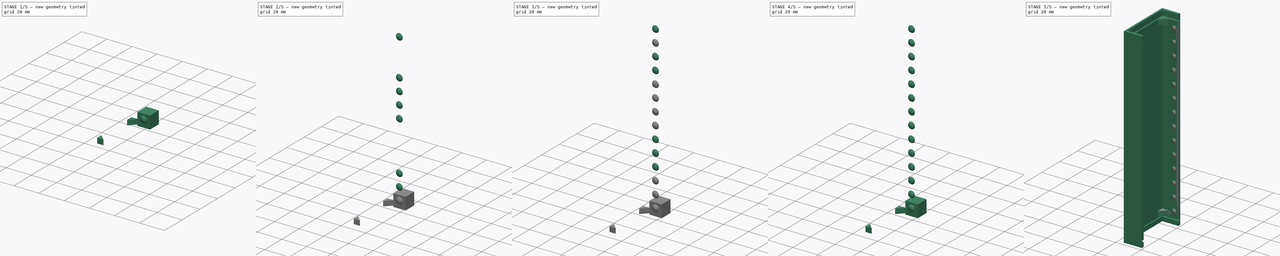
[diagram: build sequence overview — one tinted view per stage of 5, left to right]
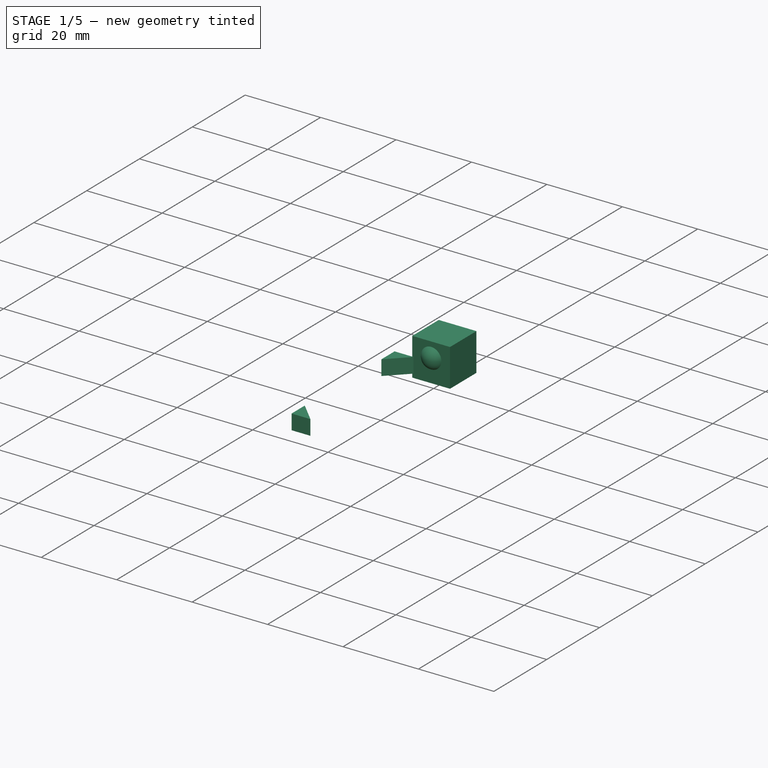
[diagram: stage 1 of 5 — iso view after this stage's code; geometry added in this stage tinted green]
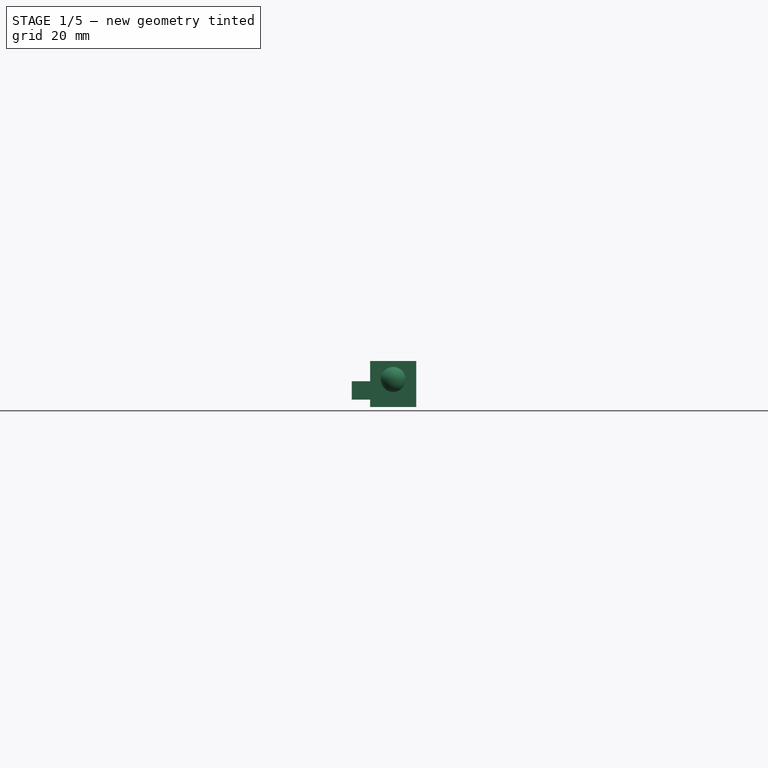
[diagram: stage 1 of 5 — front view after this stage's code; geometry added in this stage tinted green]
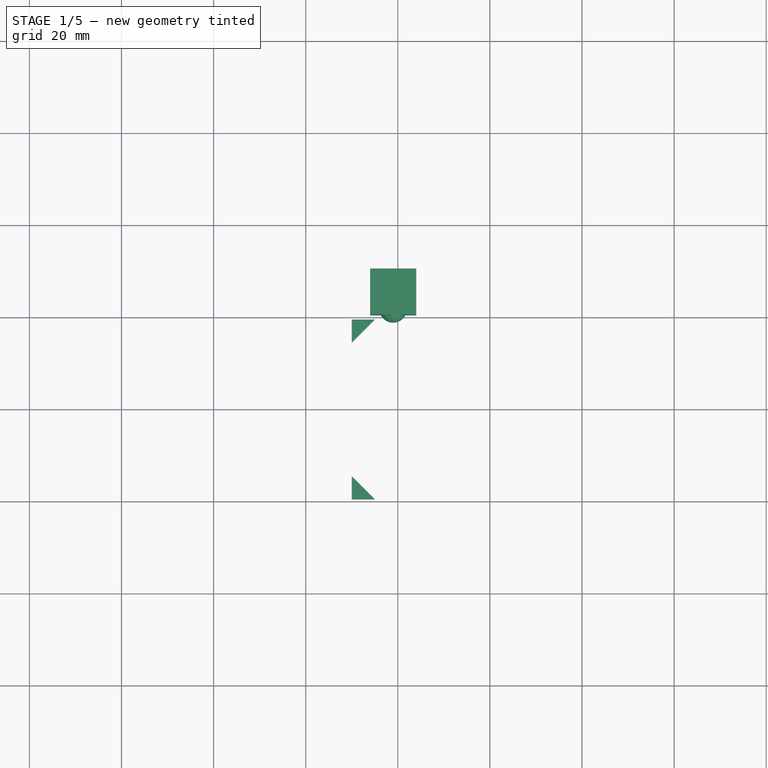
[diagram: stage 1 of 5 — top view after this stage's code; geometry added in this stage tinted green]
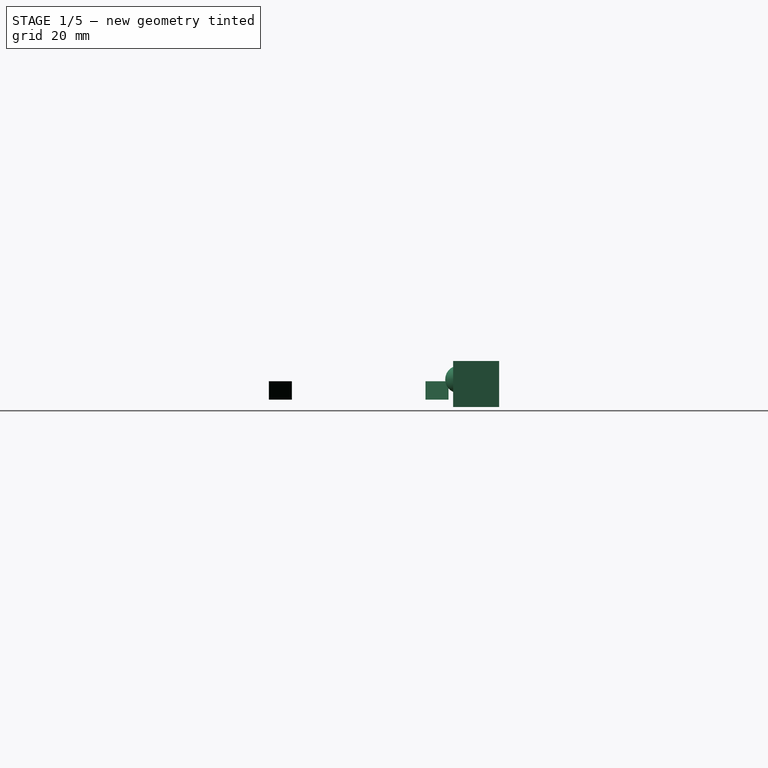
[diagram: stage 1 of 5 — right view after this stage's code; geometry added in this stage tinted green]
FCSTD DOCUMENT  (FreeCAD 0.17R13522 (Git))
Label: BaseClippingSide
License: All rights reserved
LicenseURL: http://en.wikipedia.org/wiki/All_rights_reserved
objects: Part::Sphere×28, Part::Box×28, Part::Cut×28, Part::MultiFuse×9, Sketcher::SketchObject×8, Part::Extrusion×8
note: 109 computed .brp shape members not serialized (recipe doc carries the construction recipe); baked Part::Feature solids carry a one-line shape summary decoded from their .brp

FEATURE [Part::Sphere] Sphere045
  Angle1 = -90
  Angle2 = 90
  Angle3 = 360
  AttacherType = Attacher::AttachEngine3D
  Placement = pos=(-1,21.8,6) rot=(0,0,1;0rad)
  Radius = 3
FEATURE [Part::Box] Box055  label="Cube053"
  AttacherType = Attacher::AttachEngine3D
  Height = 10
  Length = 10
  Placement = pos=(-6,20.5,0) rot=(0,0,1;0rad)
  Width = 10
FEATURE [Part::Box] Box056  label="Cube054"
  AttacherType = Attacher::AttachEngine3D
  Height = 10
  Length = 10
  Placement = pos=(-6,20.5,0) rot=(0,0,1;0rad)
  Width = 10
FEATURE [Part::Sphere] Sphere053
  Angle1 = -90
  Angle2 = 90
  Angle3 = 360
  AttacherType = Attacher::AttachEngine3D
  Placement = pos=(-1,21.8,6) rot=(0,0,1;0rad)
  Radius = 3
FEATURE [Part::Box] Box059  label="Cube057"
  AttacherType = Attacher::AttachEngine3D
  Height = 10
  Length = 10
  Placement = pos=(-6,20.5,0) rot=(0,0,1;0rad)
  Width = 10
FEATURE [Part::Sphere] Sphere055
  Angle1 = -90
  Angle2 = 90
  Angle3 = 360
  AttacherType = Attacher::AttachEngine3D
  Placement = pos=(-1,21.8,6) rot=(0,0,1;0rad)
  Radius = 3
FEATURE [Part::Box] Box060  label="Cube058"
  AttacherType = Attacher::AttachEngine3D
  Height = 10
  Length = 10
  Placement = pos=(-6,20.5,0) rot=(0,0,1;0rad)
  Width = 10
FEATURE [Part::Box] Box061  label="Cube059"
  AttacherType = Attacher::AttachEngine3D
  Height = 10
  Length = 10
  Placement = pos=(-6,20.5,0) rot=(0,0,1;0rad)
  Width = 10
FEATURE [Part::Box] Box062  label="Cube060"
  AttacherType = Attacher::AttachEngine3D
  Height = 10
  Length = 10
  Placement = pos=(-6,20.5,0) rot=(0,0,1;0rad)
  Width = 10
FEATURE [Part::Box] Box063  label="Cube061"
  AttacherType = Attacher::AttachEngine3D
  Height = 10
  Length = 10
  Placement = pos=(-6,20.5,0) rot=(0,0,1;0rad)
  Width = 10
FEATURE [Part::Sphere] Sphere056
  Angle1 = -90
  Angle2 = 90
  Angle3 = 360
  AttacherType = Attacher::AttachEngine3D
  Placement = pos=(-1,21.8,6) rot=(0,0,1;0rad)
  Radius = 3
FEATURE [Part::Box] Box058  label="Cube056"
  AttacherType = Attacher::AttachEngine3D
  Height = 10
  Length = 10
  Placement = pos=(-6,20.5,0) rot=(0,0,1;0rad)
  Width = 10
FEATURE [Part::Sphere] Sphere052
  Angle1 = -90
  Angle2 = 90
  Angle3 = 360
  AttacherType = Attacher::AttachEngine3D
  Placement = pos=(-1,21.8,6) rot=(0,0,1;0rad)
  Radius = 3
FEATURE [Part::Box] Box057  label="Cube055"
  AttacherType = Attacher::AttachEngine3D
  Height = 10
  Length = 10
  Placement = pos=(-6,20.5,0) rot=(0,0,1;0rad)
  Width = 10
FEATURE [Part::Sphere] Sphere051
  Angle1 = -90
  Angle2 = 90
  Angle3 = 360
  AttacherType = Attacher::AttachEngine3D
  Placement = pos=(-1,21.8,6) rot=(0,0,1;0rad)
  Radius = 3
FEATURE [Part::Extrusion] Extrude014
  Base = -> Sketch010
  Dir = (0,0,1)
  DirMode = 2
  FaceMakerClass = Part::FaceMakerBullseye
  LengthFwd = 4
  LengthRev = 0
  Placement = pos=(-10,19.5,1.6) rot=(0,0,-1;1.5708rad)
  Solid = true
  Symmetric = false
FEATURE [Part::Cut] Cut057  label="NobHole055"
  Base = -> Sphere045
  Tool = -> Box062
FEATURE [Sketcher::SketchObject] Sketch012
  MapMode = 2
  sketch-geometry (3):
    g0: LineSegment StartX=0 StartY=0 StartZ=0 EndX=5 EndY=0 EndZ=0
    g1: LineSegment StartX=0 StartY=5 StartZ=0 EndX=5 EndY=0 EndZ=0
    g2: LineSegment StartX=0 StartY=5 StartZ=0 EndX=0 EndY=0 EndZ=0
  constraints (8):
    c: Coincident(g0,g2)
    c: Angle(g0,g2) = 1.5708
    c: Coincident(g1,g2)
    c: Coincident(g1,g0)
    c: DistanceX(g0,g0) = 5
    c: DistanceY(g2,g2) = 5
    c: Coincident(g0,g-1)
    c: Parallel(g0,g-1)
FEATURE [Part::Extrusion] Extrude019
  Base = -> Sketch012
  Dir = (0,0,1)
  DirMode = 2
  FaceMakerClass = Part::FaceMakerBullseye
  LengthFwd = 4
  LengthRev = 0
  Placement = pos=(-10,-19.5,1.6) rot=(0,0,1;0rad)
  Solid = true
  Symmetric = false
FEATURE [Sketcher::SketchObject] Sketch013
  MapMode = 2
  sketch-geometry (3):
    g0: LineSegment StartX=0 StartY=0 StartZ=0 EndX=5 EndY=0 EndZ=0
    g1: LineSegment StartX=0 StartY=5 StartZ=0 EndX=5 EndY=0 EndZ=0
    g2: LineSegment StartX=0 StartY=5 StartZ=0 EndX=0 EndY=0 EndZ=0
  constraints (8):
    c: Coincident(g0,g2)
    c: Angle(g0,g2) = 1.5708
    c: Coincident(g1,g2)
    c: Coincident(g1,g0)
    c: DistanceX(g0,g0) = 5
    c: DistanceY(g2,g2) = 5
    c: Coincident(g0,g-1)
    c: Parallel(g0,g-1)
FEATURE [Part::Extrusion] Extrude024
  Base = -> Sketch013
  Dir = (0,0,1)
  DirMode = 2
  FaceMakerClass = Part::FaceMakerBullseye
  LengthFwd = 4
  LengthRev = 0
  Placement = pos=(-10,19.5,1.6) rot=(0,0,-1;1.5708rad)
  Solid = true
  Symmetric = false
FEATURE [Sketcher::SketchObject] Sketch018
  MapMode = 2
  sketch-geometry (3):
    g0: LineSegment StartX=0 StartY=0 StartZ=0 EndX=5 EndY=0 EndZ=0
    g1: LineSegment StartX=0 StartY=5 StartZ=0 EndX=5 EndY=0 EndZ=0
    g2: LineSegment StartX=0 StartY=5 StartZ=0 EndX=0 EndY=0 EndZ=0
  constraints (8):
    c: Coincident(g0,g2)
    c: Angle(g0,g2) = 1.5708
    c: Coincident(g1,g2)
    c: Coincident(g1,g0)
    c: DistanceX(g0,g0) = 5
    c: DistanceY(g2,g2) = 5
    c: Coincident(g0,g-1)
    c: Parallel(g0,g-1)
FEATURE [Part::Extrusion] Extrude025
  Base = -> Sketch018
  Dir = (0,0,1)
  DirMode = 2
  FaceMakerClass = Part::FaceMakerBullseye
  LengthFwd = 4
  LengthRev = 0
  Placement = pos=(-10,-19.5,1.6) rot=(0,0,1;0rad)
  Solid = true
  Symmetric = false
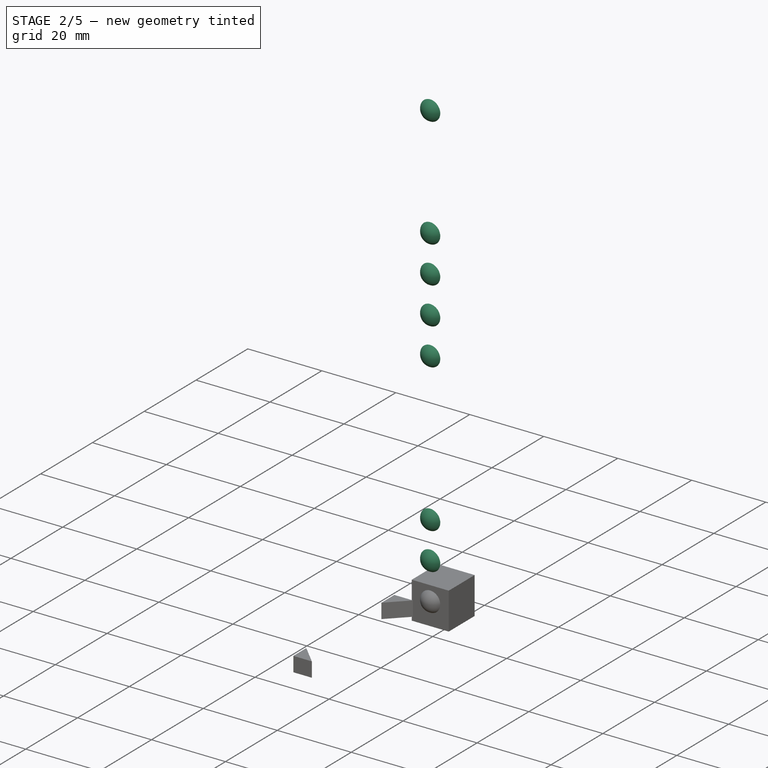
[diagram: stage 2 of 5 — iso view after this stage's code; geometry added in this stage tinted green]
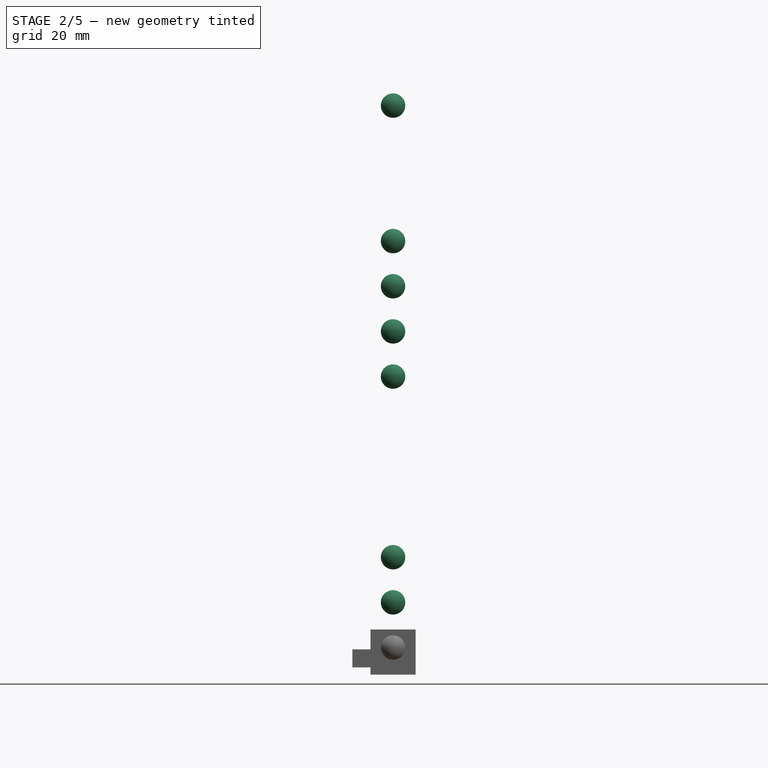
[diagram: stage 2 of 5 — front view after this stage's code; geometry added in this stage tinted green]
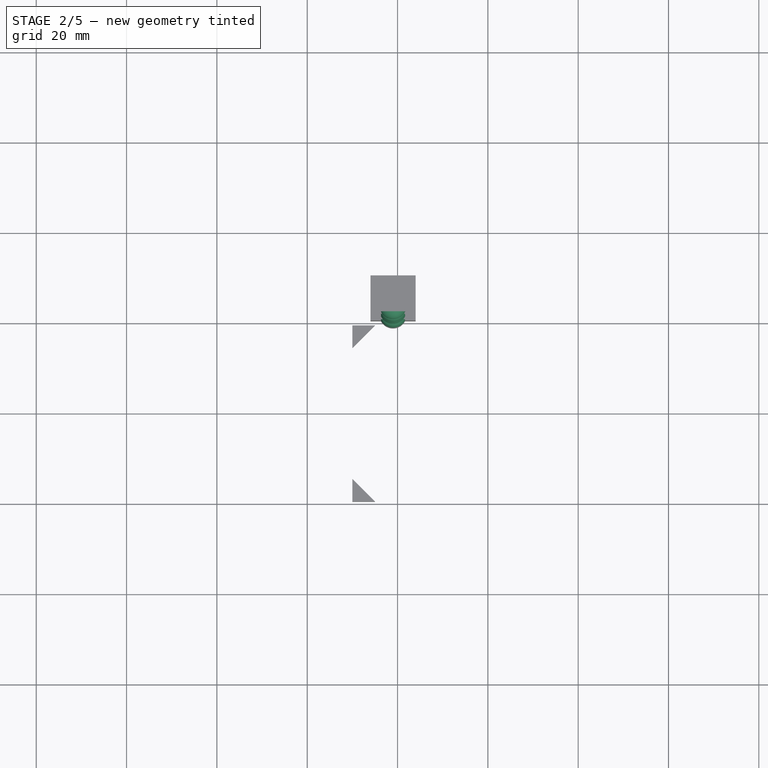
[diagram: stage 2 of 5 — top view after this stage's code; geometry added in this stage tinted green]
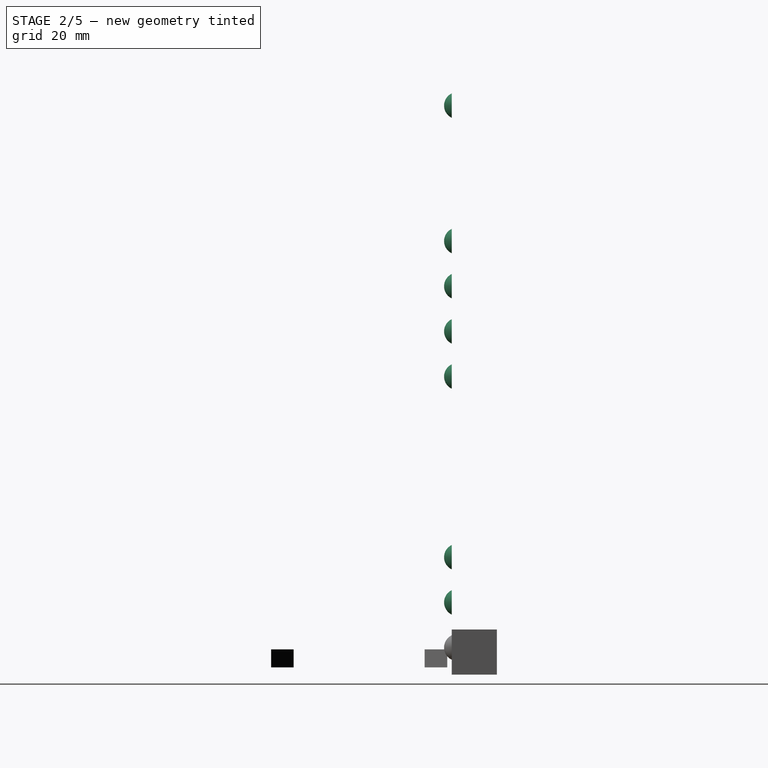
[diagram: stage 2 of 5 — right view after this stage's code; geometry added in this stage tinted green]
FEATURE [Part::Sphere] Sphere044
  Angle1 = -90
  Angle2 = 90
  Angle3 = 360
  AttacherType = Attacher::AttachEngine3D
  Placement = pos=(-1,21.8,6) rot=(0,0,1;0rad)
  Radius = 3
FEATURE [Part::Box] Box050  label="Cube048"
  AttacherType = Attacher::AttachEngine3D
  Height = 10
  Length = 10
  Placement = pos=(-6,20.5,0) rot=(0,0,1;0rad)
  Width = 10
FEATURE [Part::Box] Box051  label="Cube049"
  AttacherType = Attacher::AttachEngine3D
  Height = 10
  Length = 10
  Placement = pos=(-6,20.5,0) rot=(0,0,1;0rad)
  Width = 10
FEATURE [Part::Sphere] Sphere046
  Angle1 = -90
  Angle2 = 90
  Angle3 = 360
  AttacherType = Attacher::AttachEngine3D
  Placement = pos=(-1,21.8,6) rot=(0,0,1;0rad)
  Radius = 3
FEATURE [Part::Sphere] Sphere047
  Angle1 = -90
  Angle2 = 90
  Angle3 = 360
  AttacherType = Attacher::AttachEngine3D
  Placement = pos=(-1,21.8,6) rot=(0,0,1;0rad)
  Radius = 3
FEATURE [Part::Box] Box052  label="Cube050"
  AttacherType = Attacher::AttachEngine3D
  Height = 10
  Length = 10
  Placement = pos=(-6,20.5,0) rot=(0,0,1;0rad)
  Width = 10
FEATURE [Part::Sphere] Sphere048
  Angle1 = -90
  Angle2 = 90
  Angle3 = 360
  AttacherType = Attacher::AttachEngine3D
  Placement = pos=(-1,21.8,6) rot=(0,0,1;0rad)
  Radius = 3
FEATURE [Part::Sphere] Sphere043
  Angle1 = -90
  Angle2 = 90
  Angle3 = 360
  AttacherType = Attacher::AttachEngine3D
  Placement = pos=(-1,21.8,6) rot=(0,0,1;0rad)
  Radius = 3
FEATURE [Part::Sphere] Sphere049
  Angle1 = -90
  Angle2 = 90
  Angle3 = 360
  AttacherType = Attacher::AttachEngine3D
  Placement = pos=(-1,21.8,6) rot=(0,0,1;0rad)
  Radius = 3
FEATURE [Part::Box] Box054  label="Cube052"
  AttacherType = Attacher::AttachEngine3D
  Height = 10
  Length = 10
  Placement = pos=(-6,20.5,0) rot=(0,0,1;0rad)
  Width = 10
FEATURE [Part::Cut] Cut054  label="NobHole052"
  Base = -> Sphere044
  Placement = pos=(0,0,10) rot=(0,0,1;0rad)
  Tool = -> Box054
FEATURE [Part::Box] Box053  label="Cube051"
  AttacherType = Attacher::AttachEngine3D
  Height = 10
  Length = 10
  Placement = pos=(-6,20.5,0) rot=(0,0,1;0rad)
  Width = 10
FEATURE [Part::Sphere] Sphere054
  Angle1 = -90
  Angle2 = 90
  Angle3 = 360
  AttacherType = Attacher::AttachEngine3D
  Placement = pos=(-1,21.8,6) rot=(0,0,1;0rad)
  Radius = 3
FEATURE [Part::Sphere] Sphere050
  Angle1 = -90
  Angle2 = 90
  Angle3 = 360
  AttacherType = Attacher::AttachEngine3D
  Placement = pos=(-1,21.8,6) rot=(0,0,1;0rad)
  Radius = 3
FEATURE [Part::Cut] Cut046  label="NobHole044"
  Base = -> Sphere055
  Placement = pos=(0,0,80) rot=(0,0,1;0rad)
  Tool = -> Box059
FEATURE [Part::Cut] Cut044  label="NobHole042"
  Base = -> Sphere043
  Placement = pos=(0,0,20) rot=(0,0,1;0rad)
  Tool = -> Box061
FEATURE [Part::Cut] Cut050  label="NobHole048"
  Base = -> Sphere050
  Placement = pos=(0,0,90) rot=(0,0,1;0rad)
  Tool = -> Box063
FEATURE [Part::Cut] Cut051  label="NobHole049"
  Base = -> Sphere056
  Placement = pos=(0,0,120) rot=(0,0,1;0rad)
  Tool = -> Box056
FEATURE [Part::Cut] Cut045  label="NobHole043"
  Base = -> Sphere047
  Placement = pos=(0,0,60) rot=(0,0,1;0rad)
  Tool = -> Box058
FEATURE [Part::Cut] Cut052  label="NobHole050"
  Base = -> Sphere051
  Placement = pos=(0,0,70) rot=(0,0,1;0rad)
  Tool = -> Box057
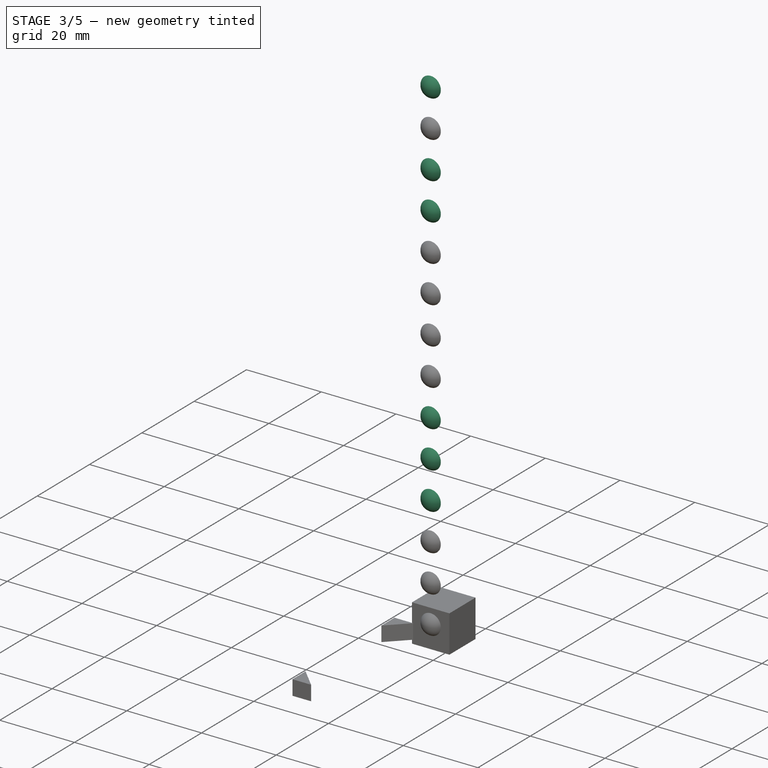
[diagram: stage 3 of 5 — iso view after this stage's code; geometry added in this stage tinted green]
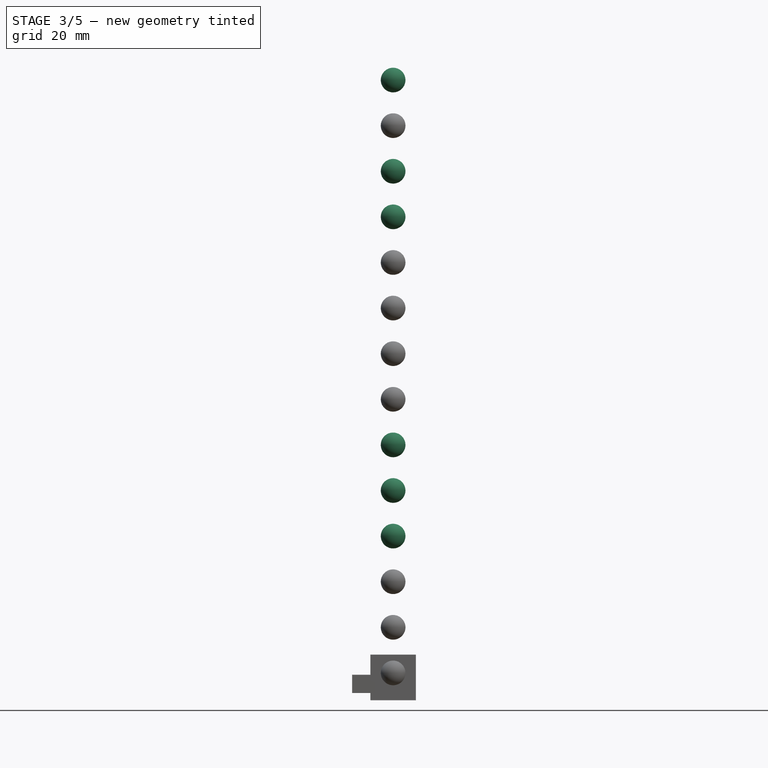
[diagram: stage 3 of 5 — front view after this stage's code; geometry added in this stage tinted green]
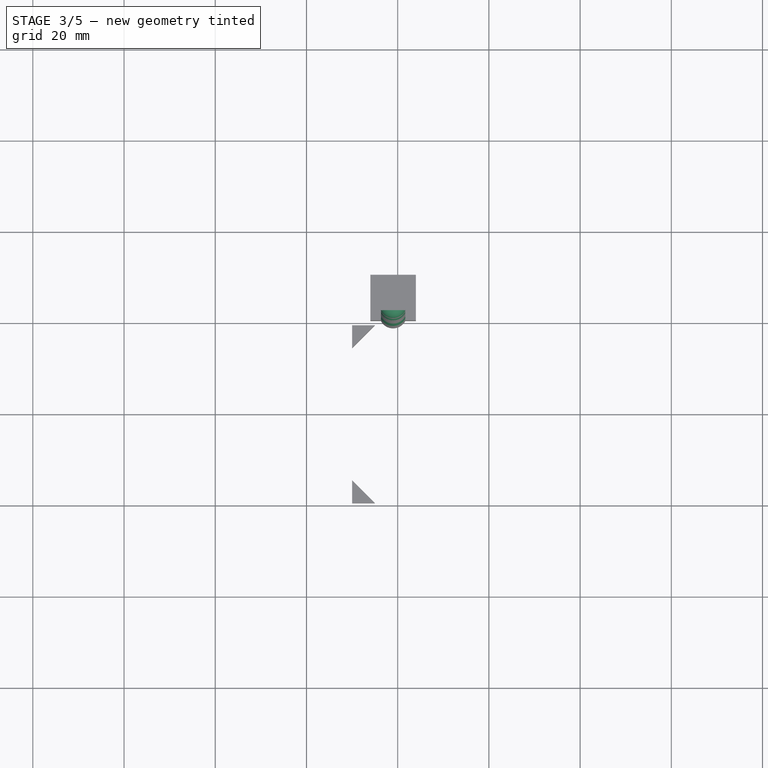
[diagram: stage 3 of 5 — top view after this stage's code; geometry added in this stage tinted green]
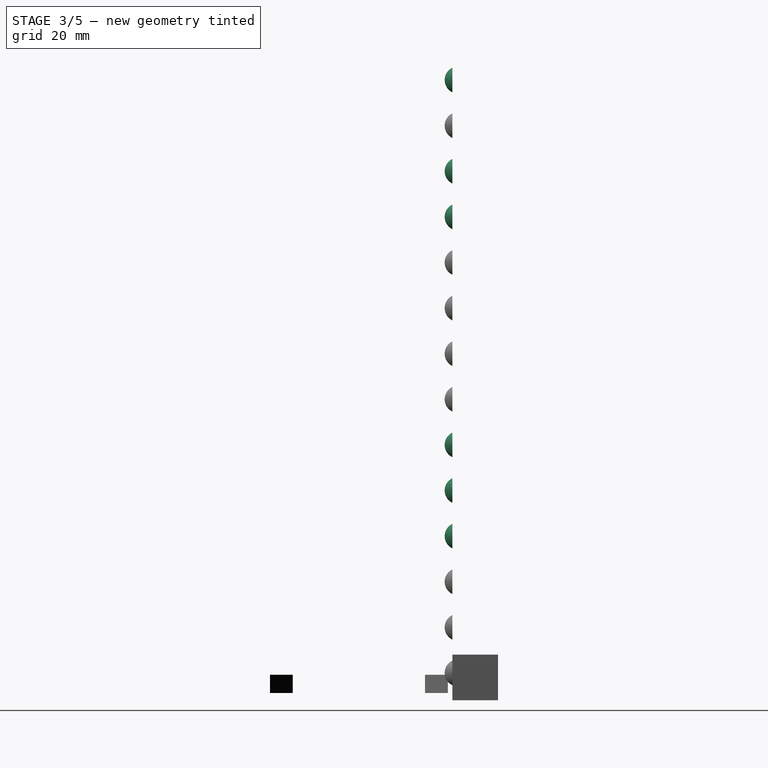
[diagram: stage 3 of 5 — right view after this stage's code; geometry added in this stage tinted green]
FEATURE [Part::Sphere] Sphere015
  Angle1 = -90
  Angle2 = 90
  Angle3 = 360
  AttacherType = Attacher::AttachEngine3D
  Placement = pos=(-1,21.8,6) rot=(0,0,1;0rad)
  Radius = 3
FEATURE [Part::Box] Box022  label="Cube020"
  AttacherType = Attacher::AttachEngine3D
  Height = 10
  Length = 10
  Placement = pos=(-6,20.5,0) rot=(0,0,1;0rad)
  Width = 10
FEATURE [Part::Sphere] Sphere019
  Angle1 = -90
  Angle2 = 90
  Angle3 = 360
  AttacherType = Attacher::AttachEngine3D
  Placement = pos=(-1,21.8,6) rot=(0,0,1;0rad)
  Radius = 3
FEATURE [Part::Sphere] Sphere022
  Angle1 = -90
  Angle2 = 90
  Angle3 = 360
  AttacherType = Attacher::AttachEngine3D
  Placement = pos=(-1,21.8,6) rot=(0,0,1;0rad)
  Radius = 3
FEATURE [Part::Box] Box026  label="Cube024"
  AttacherType = Attacher::AttachEngine3D
  Height = 10
  Length = 10
  Placement = pos=(-6,20.5,0) rot=(0,0,1;0rad)
  Width = 10
FEATURE [Part::Cut] Cut025  label="NobHole023"
  Base = -> Sphere019
  Placement = pos=(0,0,120) rot=(0,0,1;0rad)
  Tool = -> Box026
FEATURE [Part::Cut] Cut022  label="NobHole020"
  Base = -> Sphere015
  Placement = pos=(0,0,90) rot=(0,0,1;0rad)
  Tool = -> Box022
FEATURE [Part::Box] Box034  label="Cube032"
  AttacherType = Attacher::AttachEngine3D
  Height = 10
  Length = 10
  Placement = pos=(-6,20.5,0) rot=(0,0,1;0rad)
  Width = 10
FEATURE [Part::Sphere] Sphere028
  Angle1 = -90
  Angle2 = 90
  Angle3 = 360
  AttacherType = Attacher::AttachEngine3D
  Placement = pos=(-1,21.8,6) rot=(0,0,1;0rad)
  Radius = 3
FEATURE [Part::Box] Box033  label="Cube031"
  AttacherType = Attacher::AttachEngine3D
  Height = 10
  Length = 10
  Placement = pos=(-6,20.5,0) rot=(0,0,1;0rad)
  Width = 10
FEATURE [Part::Sphere] Sphere025
  Angle1 = -90
  Angle2 = 90
  Angle3 = 360
  AttacherType = Attacher::AttachEngine3D
  Placement = pos=(-1,21.8,6) rot=(0,0,1;0rad)
  Radius = 3
FEATURE [Part::Sphere] Sphere024
  Angle1 = -90
  Angle2 = 90
  Angle3 = 360
  AttacherType = Attacher::AttachEngine3D
  Placement = pos=(-1,21.8,6) rot=(0,0,1;0rad)
  Radius = 3
FEATURE [Part::Sphere] Sphere027
  Angle1 = -90
  Angle2 = 90
  Angle3 = 360
  AttacherType = Attacher::AttachEngine3D
  Placement = pos=(-1,21.8,6) rot=(0,0,1;0rad)
  Radius = 3
FEATURE [Part::Sphere] Sphere026
  Angle1 = -90
  Angle2 = 90
  Angle3 = 360
  AttacherType = Attacher::AttachEngine3D
  Placement = pos=(-1,21.8,6) rot=(0,0,1;0rad)
  Radius = 3
FEATURE [Part::Box] Box035  label="Cube033"
  AttacherType = Attacher::AttachEngine3D
  Height = 10
  Length = 10
  Placement = pos=(-6,20.5,0) rot=(0,0,1;0rad)
  Width = 10
FEATURE [Part::Cut] Cut053  label="NobHole051"
  Base = -> Sphere048
  Placement = pos=(0,0,40) rot=(0,0,1;0rad)
  Tool = -> Box050
FEATURE [Part::Cut] Cut055  label="NobHole053"
  Base = -> Sphere049
  Placement = pos=(0,0,100) rot=(0,0,1;0rad)
  Tool = -> Box053
FEATURE [Part::Cut] Cut048  label="NobHole046"
  Base = -> Sphere054
  Placement = pos=(0,0,50) rot=(0,0,1;0rad)
  Tool = -> Box051
FEATURE [Part::Cut] Cut047  label="NobHole045"
  Base = -> Sphere046
  Placement = pos=(0,0,130) rot=(0,0,1;0rad)
  Tool = -> Box055
FEATURE [Part::Cut] Cut056  label="NobHole054"
  Base = -> Sphere053
  Placement = pos=(0,0,30) rot=(0,0,1;0rad)
  Tool = -> Box052
FEATURE [Part::Cut] Cut049  label="NobHole047"
  Base = -> Sphere052
  Placement = pos=(0,0,110) rot=(0,0,1;0rad)
  Tool = -> Box060
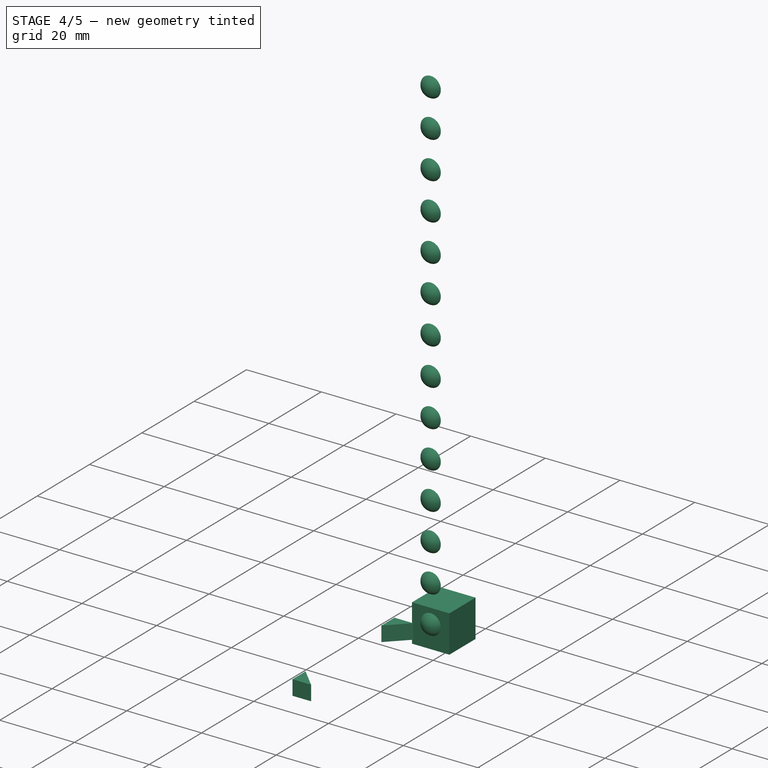
[diagram: stage 4 of 5 — iso view after this stage's code; geometry added in this stage tinted green]
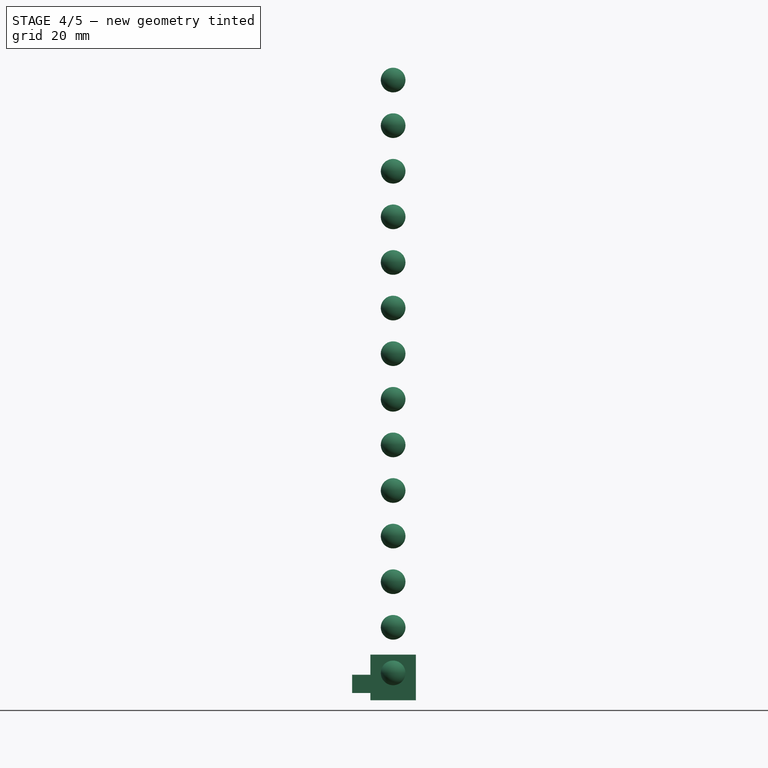
[diagram: stage 4 of 5 — front view after this stage's code; geometry added in this stage tinted green]
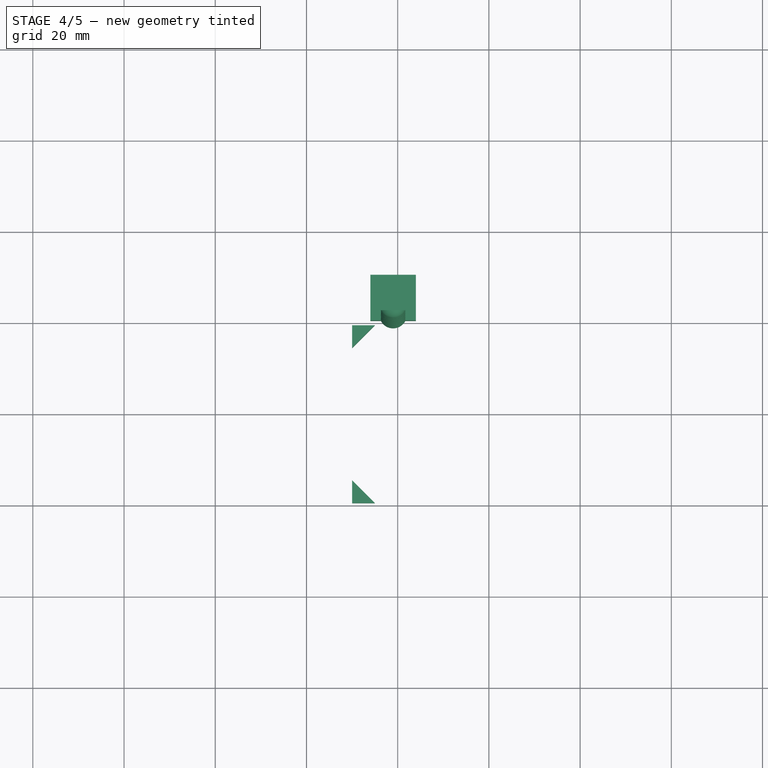
[diagram: stage 4 of 5 — top view after this stage's code; geometry added in this stage tinted green]
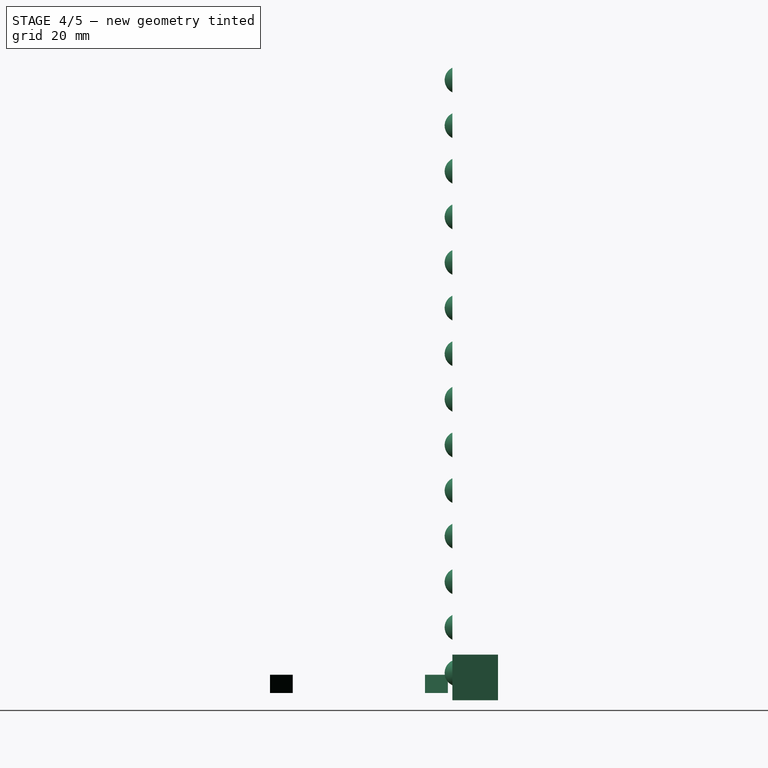
[diagram: stage 4 of 5 — right view after this stage's code; geometry added in this stage tinted green]
FEATURE [Part::Sphere] Sphere021
  Angle1 = -90
  Angle2 = 90
  Angle3 = 360
  AttacherType = Attacher::AttachEngine3D
  Placement = pos=(-1,21.8,6) rot=(0,0,1;0rad)
  Radius = 3
FEATURE [Part::Box] Box028  label="Cube026"
  AttacherType = Attacher::AttachEngine3D
  Height = 10
  Length = 10
  Placement = pos=(-6,20.5,0) rot=(0,0,1;0rad)
  Width = 10
FEATURE [Part::Sphere] Sphere017
  Angle1 = -90
  Angle2 = 90
  Angle3 = 360
  AttacherType = Attacher::AttachEngine3D
  Placement = pos=(-1,21.8,6) rot=(0,0,1;0rad)
  Radius = 3
FEATURE [Part::Box] Box030  label="Cube028"
  AttacherType = Attacher::AttachEngine3D
  Height = 10
  Length = 10
  Placement = pos=(-6,20.5,0) rot=(0,0,1;0rad)
  Width = 10
FEATURE [Part::Box] Box025  label="Cube023"
  AttacherType = Attacher::AttachEngine3D
  Height = 10
  Length = 10
  Placement = pos=(-6,20.5,0) rot=(0,0,1;0rad)
  Width = 10
FEATURE [Part::Box] Box031  label="Cube029"
  AttacherType = Attacher::AttachEngine3D
  Height = 10
  Length = 10
  Placement = pos=(-6,20.5,0) rot=(0,0,1;0rad)
  Width = 10
FEATURE [Part::Sphere] Sphere023
  Angle1 = -90
  Angle2 = 90
  Angle3 = 360
  AttacherType = Attacher::AttachEngine3D
  Placement = pos=(-1,21.8,6) rot=(0,0,1;0rad)
  Radius = 3
FEATURE [Part::Box] Box032  label="Cube030"
  AttacherType = Attacher::AttachEngine3D
  Height = 10
  Length = 10
  Placement = pos=(-6,20.5,0) rot=(0,0,1;0rad)
  Width = 10
FEATURE [Part::Sphere] Sphere016
  Angle1 = -90
  Angle2 = 90
  Angle3 = 360
  AttacherType = Attacher::AttachEngine3D
  Placement = pos=(-1,21.8,6) rot=(0,0,1;0rad)
  Radius = 3
FEATURE [Part::Box] Box029  label="Cube027"
  AttacherType = Attacher::AttachEngine3D
  Height = 10
  Length = 10
  Placement = pos=(-6,20.5,0) rot=(0,0,1;0rad)
  Width = 10
FEATURE [Part::Box] Box023  label="Cube021"
  AttacherType = Attacher::AttachEngine3D
  Height = 10
  Length = 10
  Placement = pos=(-6,20.5,0) rot=(0,0,1;0rad)
  Width = 10
FEATURE [Part::Box] Box024  label="Cube022"
  AttacherType = Attacher::AttachEngine3D
  Height = 10
  Length = 10
  Placement = pos=(-6,20.5,0) rot=(0,0,1;0rad)
  Width = 10
FEATURE [Part::Sphere] Sphere020
  Angle1 = -90
  Angle2 = 90
  Angle3 = 360
  AttacherType = Attacher::AttachEngine3D
  Placement = pos=(-1,21.8,6) rot=(0,0,1;0rad)
  Radius = 3
FEATURE [Part::Cut] Cut023  label="NobHole021"
  Base = -> Sphere017
  Placement = pos=(0,0,100) rot=(0,0,1;0rad)
  Tool = -> Box025
FEATURE [Part::Cut] Cut028  label="NobHole026"
  Base = -> Sphere023
  Placement = pos=(0,0,50) rot=(0,0,1;0rad)
  Tool = -> Box034
FEATURE [Part::Cut] Cut029  label="NobHole027"
  Base = -> Sphere028
  Placement = pos=(0,0,130) rot=(0,0,1;0rad)
  Tool = -> Box031
FEATURE [Part::Cut] Cut021  label="NobHole019"
  Base = -> Sphere021
  Placement = pos=(0,0,40) rot=(0,0,1;0rad)
  Tool = -> Box033
FEATURE [Part::Cut] Cut026  label="NobHole024"
  Base = -> Sphere027
  Placement = pos=(0,0,10) rot=(0,0,1;0rad)
  Tool = -> Box028
FEATURE [Part::Cut] Cut024  label="NobHole022"
  Base = -> Sphere026
  Tool = -> Box030
FEATURE [Part::Cut] Cut027  label="NobHole025"
  Base = -> Sphere022
  Placement = pos=(0,0,30) rot=(0,0,1;0rad)
  Tool = -> Box035
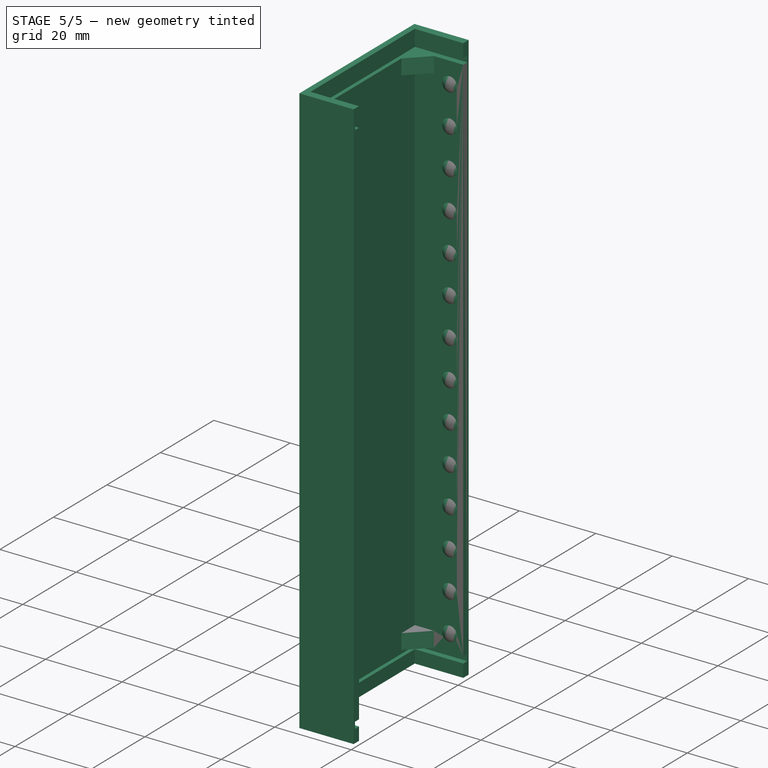
[diagram: stage 5 of 5 — iso view after this stage's code; geometry added in this stage tinted green]
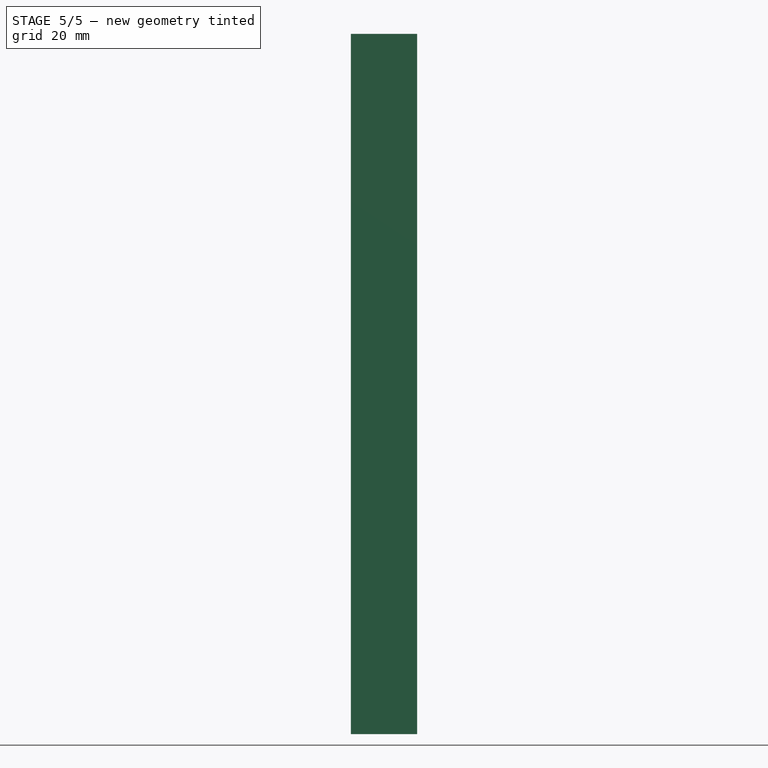
[diagram: stage 5 of 5 — front view after this stage's code; geometry added in this stage tinted green]
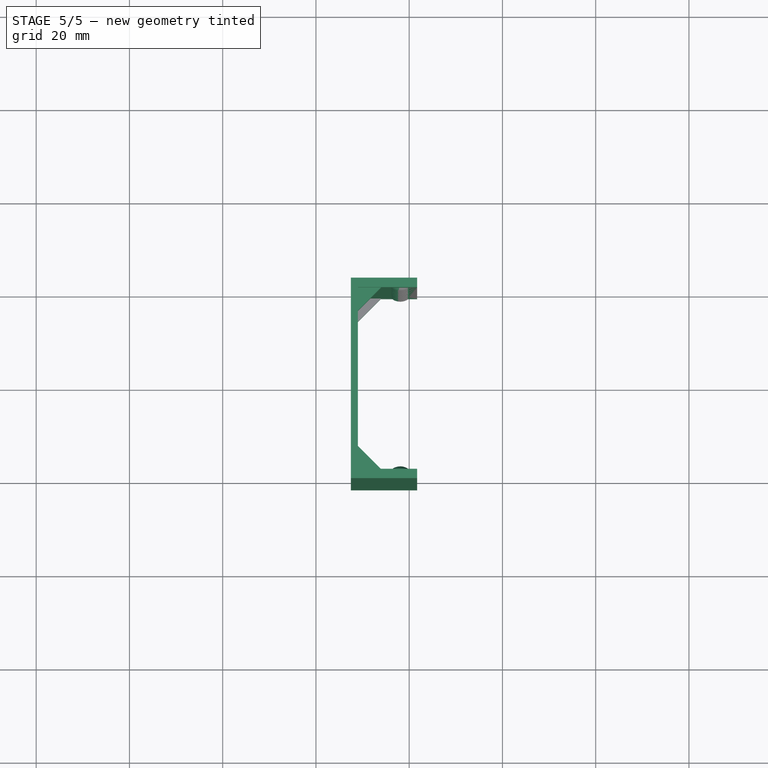
[diagram: stage 5 of 5 — top view after this stage's code; geometry added in this stage tinted green]
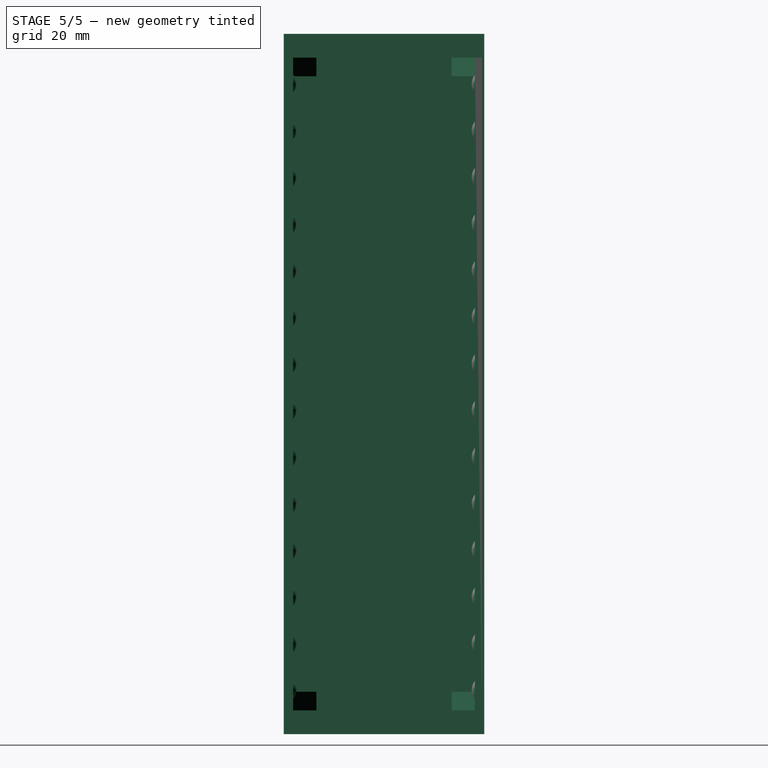
[diagram: stage 5 of 5 — right view after this stage's code; geometry added in this stage tinted green]
FEATURE [Sketcher::SketchObject] Sketch007
  MapMode = 5
  sketch-geometry (8):
    g0: LineSegment StartX=-1 StartY=21 StartZ=0 EndX=12.7 EndY=21 EndZ=0
    g1: LineSegment StartX=0 StartY=19.5 StartZ=0 EndX=12.7 EndY=19.5 EndZ=0
    g2: LineSegment StartX=12.7 StartY=21 StartZ=0 EndX=12.7 EndY=19.5 EndZ=0
    g3: LineSegment StartX=-1 StartY=21 StartZ=0 EndX=-1 EndY=-21 EndZ=0
    g4: LineSegment StartX=0 StartY=19.5 StartZ=0 EndX=0 EndY=-19.5 EndZ=0
    g5: LineSegment StartX=0 StartY=-19.5 StartZ=0 EndX=12.7 EndY=-19.5 EndZ=0
    g6: LineSegment StartX=12.7 StartY=-19.5 StartZ=0 EndX=12.7 EndY=-21 EndZ=0
    g7: LineSegment StartX=12.7 StartY=-21 StartZ=0 EndX=-1 EndY=-21 EndZ=0
  constraints (24):
    c: Coincident(g0,g2)
    c: Coincident(g2,g1)
    c: Distance(g0) = 13.7
    c: Coincident(g0,g3)
    c: Coincident(g1,g4)
    c: Coincident(g4,g5)
    c: Coincident(g5,g6)
    c: Coincident(g6,g7)
    c: Coincident(g3,g7)
    c: Parallel(g3,g4)
    c: Parallel(g4,g2)
    c: Parallel(g2,g6)
    c: Parallel(g0,g1)
    c: Parallel(g1,g5)
    c: Parallel(g5,g7)
    c: Equal(g0,g7)
    c: Equal(g1,g5)
    c: Distance(g4) = 39
    c: Symmetric(g1,g4,g-1)
    c: Angle(g3,g0) = 1.5708
    c: Distance(g3) = 42
    c: Distance(g2) = 1.5
    c: DistanceX(g3,g4) = 1
    c: PointOnObject(g-1,g4)
FEATURE [Sketcher::SketchObject] Sketch008
  MapMode = 5
  sketch-geometry (8):
    g0: LineSegment StartX=-1 StartY=21 StartZ=0 EndX=12.7 EndY=21 EndZ=0
    g1: LineSegment StartX=0 StartY=19.5 StartZ=0 EndX=12.7 EndY=19.5 EndZ=0
    g2: LineSegment StartX=12.7 StartY=21 StartZ=0 EndX=12.7 EndY=19.5 EndZ=0
    g3: LineSegment StartX=-1 StartY=21 StartZ=0 EndX=-1 EndY=-21 EndZ=0
    g4: LineSegment StartX=0 StartY=19.5 StartZ=0 EndX=0 EndY=-19.5 EndZ=0
    g5: LineSegment StartX=0 StartY=-19.5 StartZ=0 EndX=12.7 EndY=-19.5 EndZ=0
    g6: LineSegment StartX=12.7 StartY=-19.5 StartZ=0 EndX=12.7 EndY=-21 EndZ=0
    g7: LineSegment StartX=12.7 StartY=-21 StartZ=0 EndX=-1 EndY=-21 EndZ=0
  constraints (24):
    c: Coincident(g0,g2)
    c: Coincident(g2,g1)
    c: Distance(g0) = 13.7
    c: Coincident(g0,g3)
    c: Coincident(g1,g4)
    c: Coincident(g4,g5)
    c: Coincident(g5,g6)
    c: Coincident(g6,g7)
    c: Coincident(g3,g7)
    c: Parallel(g3,g4)
    c: Parallel(g4,g2)
    c: Parallel(g2,g6)
    c: Parallel(g0,g1)
    c: Parallel(g1,g5)
    c: Parallel(g5,g7)
    c: Equal(g0,g7)
    c: Equal(g1,g5)
    c: Distance(g4) = 39
    c: Symmetric(g1,g4,g-1)
    c: Angle(g3,g0) = 1.5708
    c: Distance(g3) = 42
    c: Distance(g2) = 1.5
    c: DistanceX(g3,g4) = 1
    c: PointOnObject(g-1,g4)
FEATURE [Sketcher::SketchObject] Sketch010
  MapMode = 2
  sketch-geometry (3):
    g0: LineSegment StartX=0 StartY=0 StartZ=0 EndX=5 EndY=0 EndZ=0
    g1: LineSegment StartX=0 StartY=5 StartZ=0 EndX=5 EndY=0 EndZ=0
    g2: LineSegment StartX=0 StartY=5 StartZ=0 EndX=0 EndY=0 EndZ=0
  constraints (8):
    c: Coincident(g0,g2)
    c: Angle(g0,g2) = 1.5708
    c: Coincident(g1,g2)
    c: Coincident(g1,g0)
    c: DistanceX(g0,g0) = 5
    c: DistanceY(g2,g2) = 5
    c: Coincident(g0,g-1)
    c: Parallel(g0,g-1)
FEATURE [Part::Extrusion] Extrude007
  Base = -> Sketch007
  Dir = (0,0,1)
  DirMode = 2
  FaceMakerClass = Part::FaceMakerBullseye
  LengthFwd = 140
  LengthRev = 0
  Placement = pos=(-10,0,1.6) rot=(0,0,1;0rad)
  Solid = true
  Symmetric = false
FEATURE [Part::Extrusion] Extrude008
  Base = -> Sketch008
  Dir = (0,0,1)
  DirMode = 2
  FaceMakerClass = Part::FaceMakerBullseye
  LengthFwd = 3.4
  LengthRev = 0
  Placement = pos=(-10,0,143.3) rot=(0,0,1;0rad)
  Solid = true
  Symmetric = false
FEATURE [Sketcher::SketchObject] Sketch
  MapMode = 5
  sketch-geometry (8):
    g0: LineSegment StartX=-1 StartY=21 StartZ=0 EndX=12.7 EndY=21 EndZ=0
    g1: LineSegment StartX=0 StartY=19.5 StartZ=0 EndX=12.7 EndY=19.5 EndZ=0
    g2: LineSegment StartX=12.7 StartY=21 StartZ=0 EndX=12.7 EndY=19.5 EndZ=0
    g3: LineSegment StartX=-1 StartY=21 StartZ=0 EndX=-1 EndY=-21 EndZ=0
    g4: LineSegment StartX=0 StartY=19.5 StartZ=0 EndX=0 EndY=-19.5 EndZ=0
    g5: LineSegment StartX=0 StartY=-19.5 StartZ=0 EndX=12.7 EndY=-19.5 EndZ=0
    g6: LineSegment StartX=12.7 StartY=-19.5 StartZ=0 EndX=12.7 EndY=-21 EndZ=0
    g7: LineSegment StartX=12.7 StartY=-21 StartZ=0 EndX=-1 EndY=-21 EndZ=0
  constraints (24):
    c: Coincident(g0,g2)
    c: Coincident(g2,g1)
    c: Distance(g0) = 13.7
    c: Coincident(g0,g3)
    c: Coincident(g1,g4)
    c: Coincident(g4,g5)
    c: Coincident(g5,g6)
    c: Coincident(g6,g7)
    c: Coincident(g3,g7)
    c: Parallel(g3,g4)
    c: Parallel(g4,g2)
    c: Parallel(g2,g6)
    c: Parallel(g0,g1)
    c: Parallel(g1,g5)
    c: Parallel(g5,g7)
    c: Equal(g0,g7)
    c: Equal(g1,g5)
    c: Distance(g4) = 39
    c: Symmetric(g1,g4,g-1)
    c: Angle(g3,g0) = 1.5708
    c: Distance(g3) = 42
    c: Distance(g2) = 1.5
    c: DistanceX(g3,g4) = 1
    c: PointOnObject(g-1,g4)
FEATURE [Part::Extrusion] Extrude
  Base = -> Sketch
  Dir = (0,0,1)
  DirMode = 2
  FaceMakerClass = Part::FaceMakerBullseye
  LengthFwd = 3.4
  LengthRev = 0
  Placement = pos=(-10,0,-3.5) rot=(0,0,1;0rad)
  Solid = true
  Symmetric = false
FEATURE [Part::MultiFuse] Fusion007  label="rail001"
  Shapes = -> [Extrude,Extrude007,Extrude008]
FEATURE [Sketcher::SketchObject] Sketch009
  MapMode = 5
  sketch-geometry (8):
    g0: LineSegment StartX=0 StartY=21 StartZ=0 EndX=0 EndY=-21 EndZ=0
    g1: LineSegment StartX=13.7 StartY=21 StartZ=0 EndX=0 EndY=21 EndZ=0
    g2: LineSegment StartX=13.7 StartY=21 StartZ=0 EndX=13.7 EndY=21.5 EndZ=0
    g3: LineSegment StartX=13.7 StartY=21.5 StartZ=0 EndX=-0.5 EndY=21.5 EndZ=0
    g4: LineSegment StartX=-0.5 StartY=21.5 StartZ=0 EndX=-0.5 EndY=-21.5 EndZ=0
    g5: LineSegment StartX=-0.5 StartY=-21.5 StartZ=0 EndX=13.7 EndY=-21.5 EndZ=0
    g6: LineSegment StartX=13.7 StartY=-21.5 StartZ=0 EndX=13.7 EndY=-21 EndZ=0
    g7: LineSegment StartX=13.7 StartY=-21 StartZ=0 EndX=0 EndY=-21 EndZ=0
  constraints (23):
    c: Coincident(g1,g0)
    c: Symmetric(g0,g0,g-1)
    c: Coincident(g7,g0)
    c: Distance(g0) = 42
    c: Equal(g7,g1)
    c: Equal(g3,g5)
    c: Parallel(g1,g3)
    c: Parallel(g3,g5)
    c: Parallel(g5,g7)
    c: Parallel(g7,g-1)
    c: Parallel(g0,g4)
    c: Coincident(g7,g6)
    c: Coincident(g5,g6)
    c: DistanceY(g5,g6) = 0.5
    c: Coincident(g4,g5)
    c: DistanceX(g4,g0) = 0.5
    c: Coincident(g3,g4)
    c: Distance(g1) = 13.7
    c: Coincident(g3,g2)
    c: Coincident(g1,g2)
    c: DistanceY(g1,g2) = 0.5
    c: Parallel(g2,g6)
    c: PointOnObject(g-1,g0)
FEATURE [Part::Extrusion] Extrude009  label="OuterClippSide001"
  Base = -> Sketch009
  Dir = (0,0,1)
  DirMode = 2
  FaceMakerClass = Part::FaceMakerBullseye
  LengthFwd = 150.2
  LengthRev = 0
  Placement = pos=(-11,0,-3.5) rot=(0,0,1;0rad)
  Solid = true
  Symmetric = false
FEATURE [Part::MultiFuse] Fusion008  label="ClippingSide"
  Shapes = -> [Extrude009,Fusion007]
FEATURE [Part::Box] Box027  label="Cube025"
  AttacherType = Attacher::AttachEngine3D
  Height = 10
  Length = 10
  Placement = pos=(-6,20.5,0) rot=(0,0,1;0rad)
  Width = 10
FEATURE [Part::Sphere] Sphere018
  Angle1 = -90
  Angle2 = 90
  Angle3 = 360
  AttacherType = Attacher::AttachEngine3D
  Placement = pos=(-1,21.8,6) rot=(0,0,1;0rad)
  Radius = 3
FEATURE [Part::Cut] Cut018  label="NobHole016"
  Base = -> Sphere018
  Placement = pos=(0,0,80) rot=(0,0,1;0rad)
  Tool = -> Box027
FEATURE [Part::Cut] Cut019  label="NobHole017"
  Base = -> Sphere016
  Placement = pos=(0,0,110) rot=(0,0,1;0rad)
  Tool = -> Box023
FEATURE [Part::Cut] Cut020  label="NobHole018"
  Base = -> Sphere020
  Placement = pos=(0,0,70) rot=(0,0,1;0rad)
  Tool = -> Box024
FEATURE [Part::Cut] Cut017  label="NobHole015"
  Base = -> Sphere025
  Placement = pos=(0,0,60) rot=(0,0,1;0rad)
  Tool = -> Box032
FEATURE [Part::Cut] Cut016  label="NobHole014"
  Base = -> Sphere024
  Placement = pos=(0,0,20) rot=(0,0,1;0rad)
  Tool = -> Box029
FEATURE [Part::MultiFuse] Fusion010  label="SingleNobs"
  Shapes = -> [Cut024,Cut016,Cut017,Cut018,Cut019,Cut020,Cut021,Cut022,Cut023,Cut025,Cut026,Cut027,Cut028,Cut029]
FEATURE [Part::MultiFuse] Fusion012  label="SingleNobs001"
  Placement = pos=(-2,0,0) rot=(0,0,1;3.14159rad)
  Shapes = -> [Cut057,Cut044,Cut045,Cut046,Cut049,Cut052,Cut053,Cut050,Cut055,Cut051,Cut054,Cut056,Cut048,Cut047]
FEATURE [Part::MultiFuse] Fusion014
  Placement = pos=(0.1,0,0) rot=(0,0,1;0rad)
  Shapes = -> [Fusion010,Fusion012]
FEATURE [Part::MultiFuse] Fusion015  label="ClippingSideWithNods"
  Shapes = -> [Fusion008,Fusion014]
FEATURE [Part::MultiFuse] Fusion027  label="stableliser3"
  Shapes = -> [Extrude014,Extrude019]
FEATURE [Part::MultiFuse] Fusion033  label="stableliser004"
  Placement = pos=(0,0,136) rot=(0,0,1;0rad)
  Shapes = -> [Extrude024,Extrude025]
FEATURE [Part::MultiFuse] Fusion034  label="ClippingSideWithNodsStablelise"
  Placement = pos=(-1,0,0.2) rot=(0,0,1;0rad)
  Shapes = -> [Fusion015,Fusion027,Fusion033]
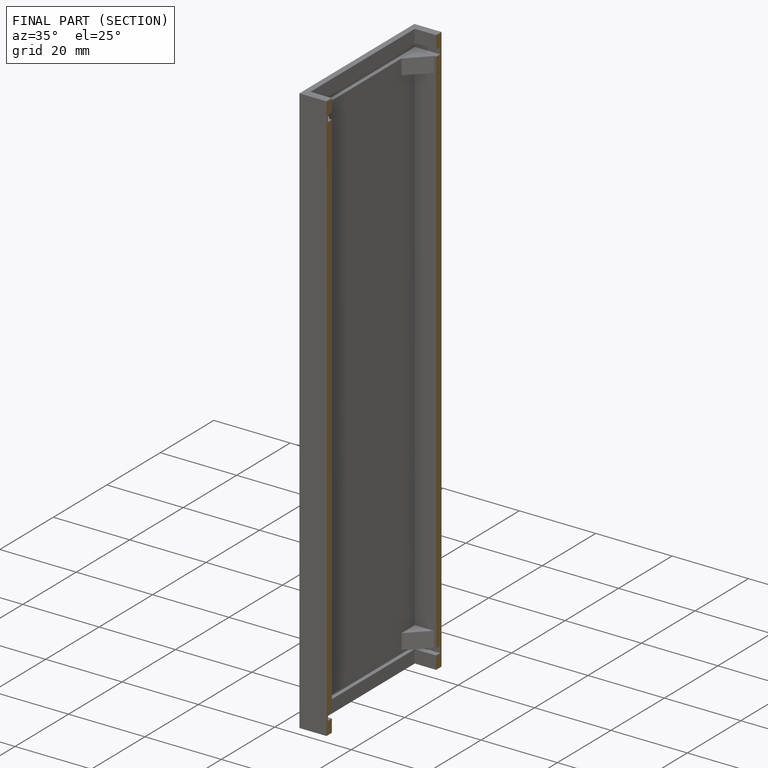
[diagram: finished part — half-section view (interior)]
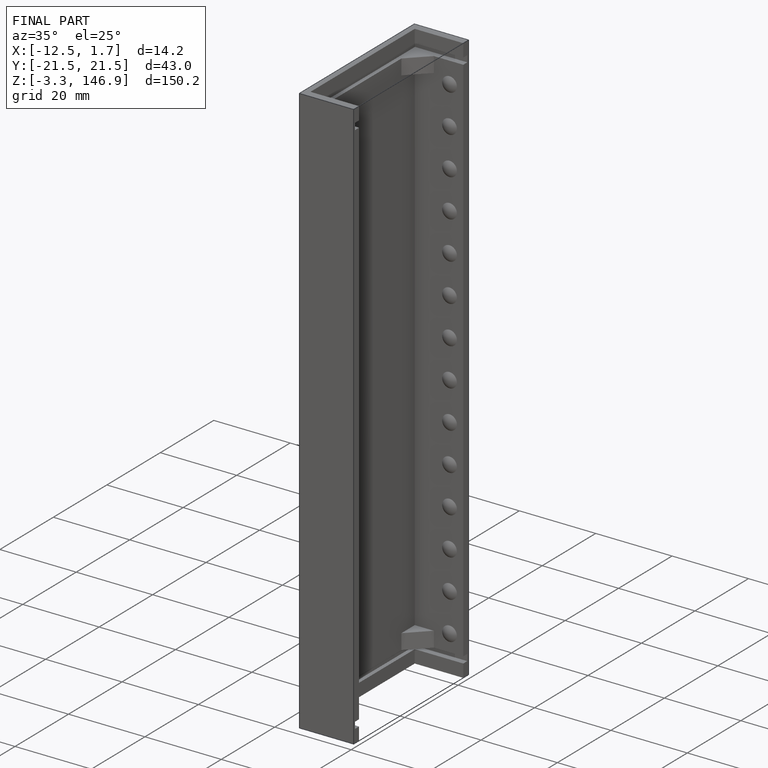
[diagram: finished part — iso view with bounding-box wireframe]
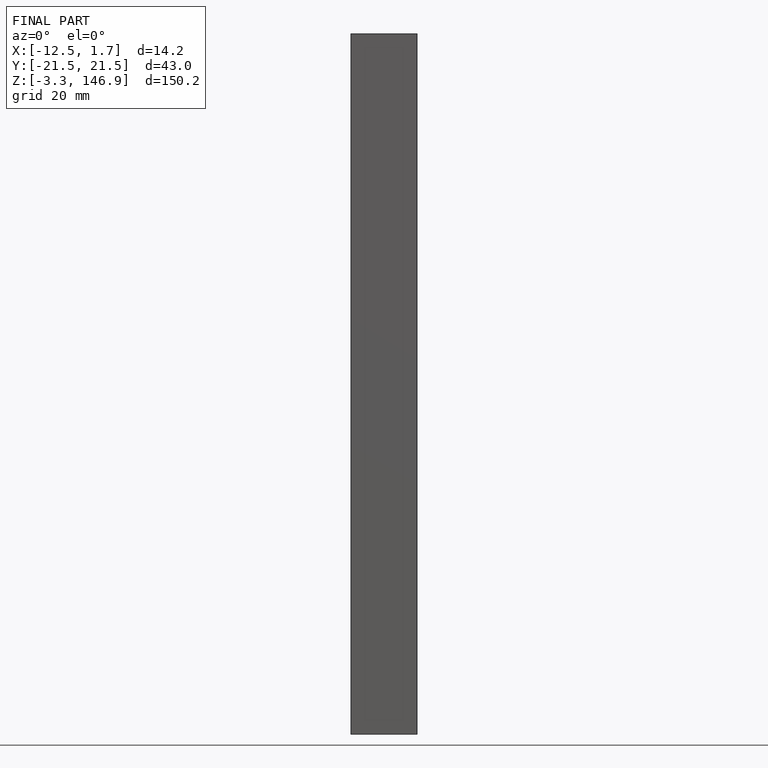
[diagram: finished part — front view with bounding-box wireframe]
